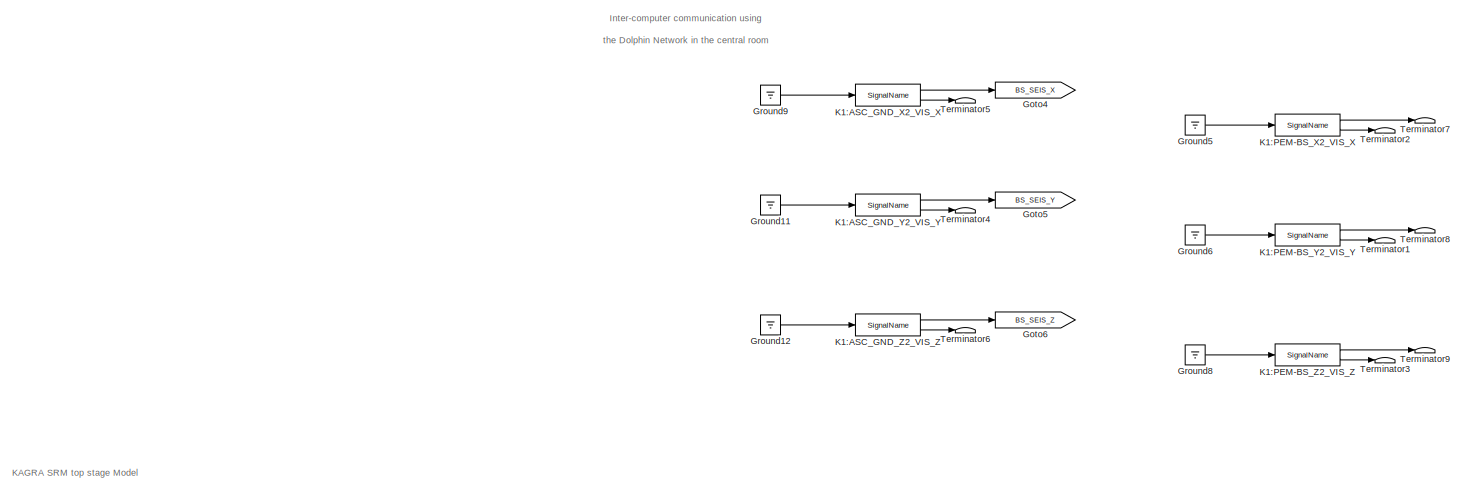
[diagram: root canvas - part 1/4, top center region]
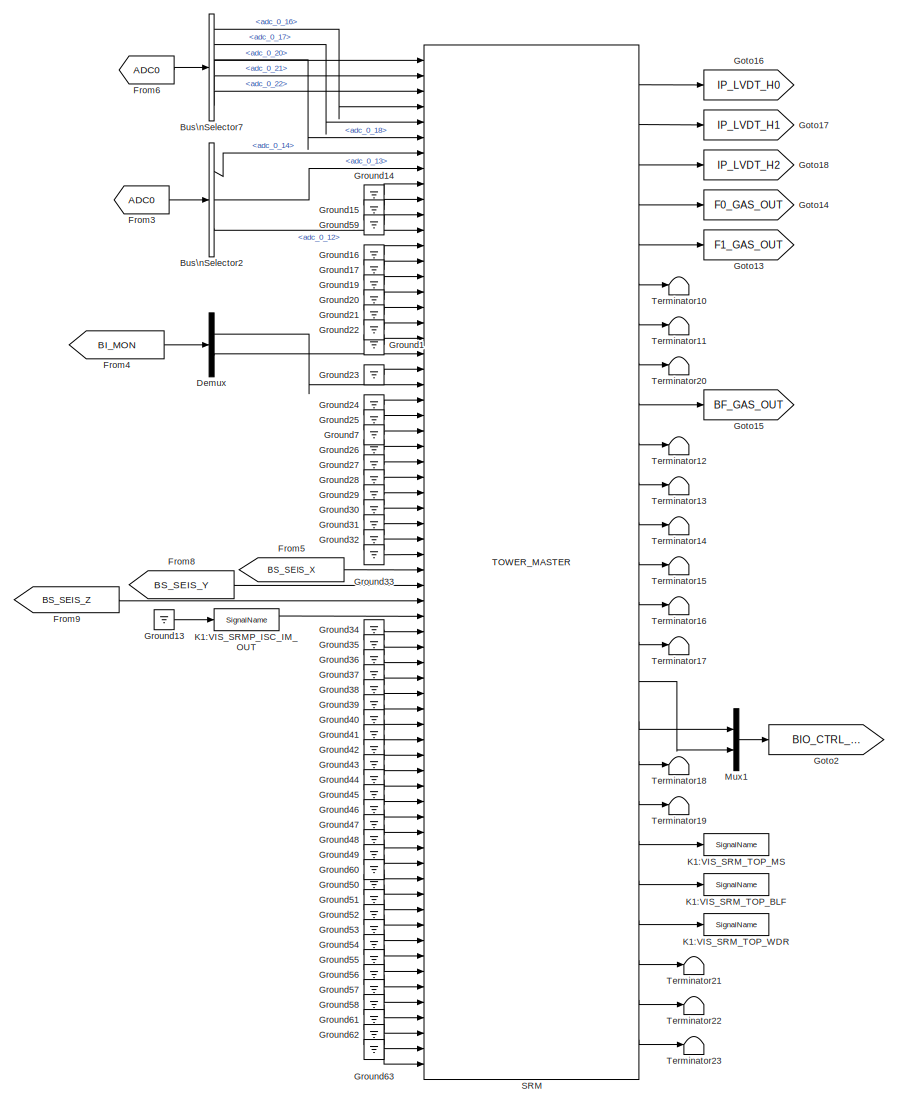
[diagram: root canvas - part 2/4, central region]
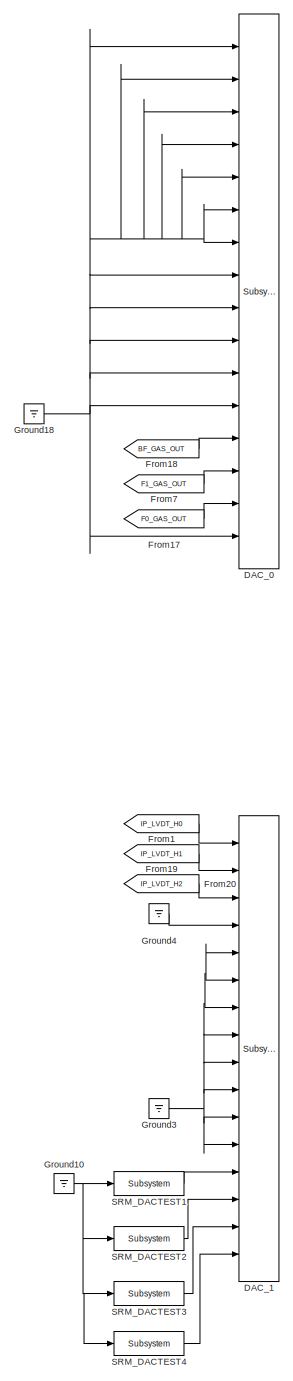
[diagram: root canvas - part 3/4, middle right region]
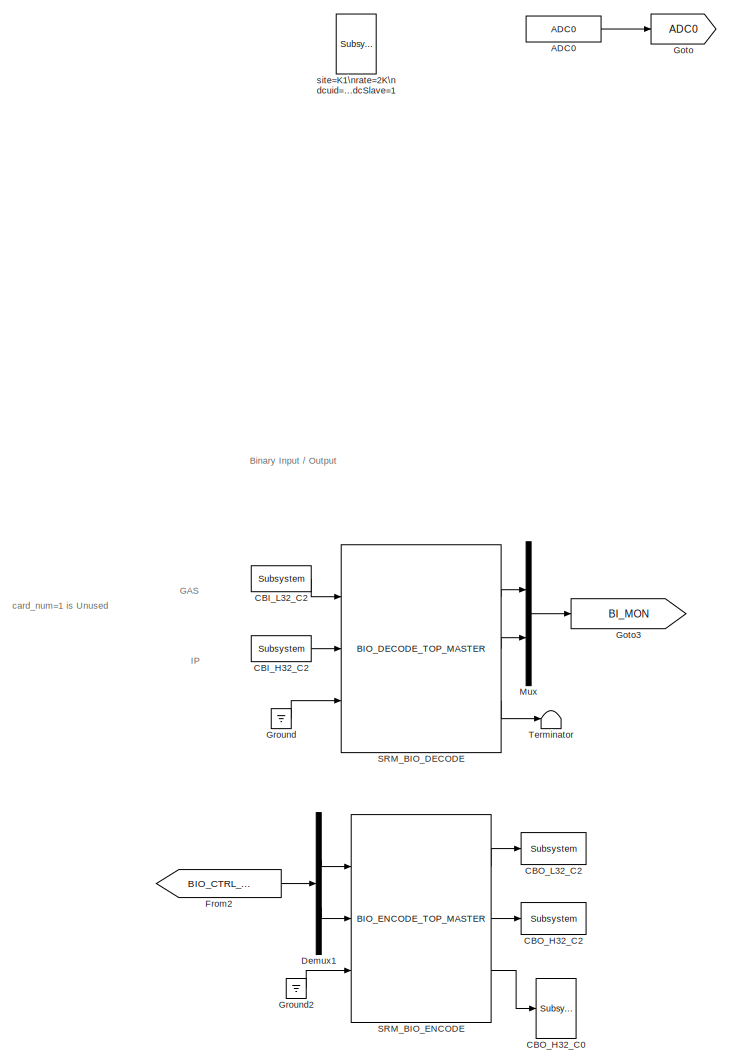
[diagram: root canvas - part 4/4, middle left region]
MODEL k1vissrmt
KIND model
BLOCK [Reference] ADC0  REF=cdsAdcx0/ADC0
  AttributesFormatString = %<Description>\\n%<Tag>
  Description = type-GSC_16AI64SSA\ncard_num=0
  Ports = [0, 1]
  SID = 352
  SourceBlock = cdsAdcx0/ADC0
  SourceType = SubSystem
  Tag = cdsAdc
BLOCK [BusSelector] Bus\nSelector2
  AttributesFormatString = %<Description>
  Description = ADC Selector
  OutputSignals = adc_0_14,adc_0_13,adc_0_12
  Ports = [1, 3]
  SID = 606
BLOCK [BusSelector] Bus\nSelector7
  AttributesFormatString = %<Description>
  Description = ADC Selector
  OutputSignals = adc_0_16,adc_0_17,adc_0_18,adc_0_20,adc_0_21,adc_0_22
  Ports = [1, 6]
  SID = 611
BLOCK [Reference] CBI_H32_C2  REF=cdsCDI64/Subsystem
  AttributesFormatString = %<Tag>\\n%<Description>
  Description = card_num=5
  Ports = [0, 1]
  SID = 753
  SourceBlock = cdsCDI64/Subsystem
  SourceType = SubSystem
  Tag = cdsCDI64
BLOCK [Reference] CBI_L32_C2  REF=cdsCDI64/Subsystem
  AttributesFormatString = %<Tag>\\n%<Description>
  Description = card_num=4
  Ports = [0, 1]
  SID = 754
  SourceBlock = cdsCDI64/Subsystem
  SourceType = SubSystem
  Tag = cdsCDI64
BLOCK [Reference] CBO_H32_C0  REF=cdsCDO64/Subsystem
  AttributesFormatString = %<Tag>\\n%<Description>
  Description = card_num=1
  Ports = [1]
  SID = 755
  SourceBlock = cdsCDO64/Subsystem
  SourceType = SubSystem
  Tag = cdsCDO64
BLOCK [Reference] CBO_H32_C2  REF=cdsCDO64/Subsystem
  AttributesFormatString = %<Tag>\\n%<Description>
  Description = card_num=5
  Ports = [1]
  SID = 756
  SourceBlock = cdsCDO64/Subsystem
  SourceType = SubSystem
  Tag = cdsCDO64
BLOCK [Reference] CBO_L32_C2  REF=cdsCDO64/Subsystem
  AttributesFormatString = %<Tag>\\n%<Description>
  Description = card_num=4
  Ports = [1]
  SID = 757
  SourceBlock = cdsCDO64/Subsystem
  SourceType = SubSystem
  Tag = cdsCDO64
BLOCK [Reference] DAC_0  REF=dac/Subsystem  (lib defined in slx_40ef132df75b, slx_b7657ccccc5b, +4 more)
  AttributesFormatString = %<Description>
  Description = type=GSC_16AO16,\ncard_num=0
  Ports = [16]
  SID = 622
  SourceBlock = dac/Subsystem
  SourceType = SubSystem
BLOCK [Reference] DAC_1  REF=dac/Subsystem  (lib defined in slx_40ef132df75b, slx_b7657ccccc5b, +4 more)
  AttributesFormatString = %<Description>
  Description = type=GSC_16AO16,\ncard_num=1
  Ports = [16]
  SID = 623
  SourceBlock = dac/Subsystem
  SourceType = SubSystem
BLOCK [Demux] Demux
  DisplayOption = bar
  Outputs = 2
  Ports = [1, 2]
  SID = 624
BLOCK [Demux] Demux1
  DisplayOption = bar
  Outputs = 2
  Ports = [1, 2]
  SID = 758
BLOCK [From] From1
  GotoTag = IP_LVDT_H0
  SID = 626
BLOCK [From] From17
  GotoTag = F0_GAS_OUT
  SID = 634
BLOCK [From] From18
  GotoTag = BF_GAS_OUT
  SID = 635
BLOCK [From] From19
  GotoTag = IP_LVDT_H1
  SID = 636
BLOCK [From] From2
  GotoTag = BIO_CTRL_OUT
  SID = 759
BLOCK [From] From20
  GotoTag = IP_LVDT_H2
  SID = 638
BLOCK [From] From3
  GotoTag = ADC0
  SID = 648
BLOCK [From] From4
  GotoTag = BI_MON
  SID = 649
BLOCK [From] From5
  GotoTag = BS_SEIS_X
  SID = 834
BLOCK [From] From6
  GotoTag = ADC0
  SID = 651
BLOCK [From] From7
  GotoTag = F1_GAS_OUT
  SID = 652
BLOCK [From] From8
  GotoTag = BS_SEIS_Y
  SID = 835
BLOCK [From] From9
  GotoTag = BS_SEIS_Z
  SID = 836
BLOCK [Goto] Goto
  GotoTag = ADC0
  SID = 655
BLOCK [Goto] Goto13
  GotoTag = F1_GAS_OUT
  SID = 660
BLOCK [Goto] Goto14
  GotoTag = F0_GAS_OUT
  SID = 661
BLOCK [Goto] Goto15
  GotoTag = BF_GAS_OUT
  SID = 662
BLOCK [Goto] Goto16
  GotoTag = IP_LVDT_H0
  SID = 663
BLOCK [Goto] Goto17
  GotoTag = IP_LVDT_H1
  SID = 664
BLOCK [Goto] Goto18
  GotoTag = IP_LVDT_H2
  SID = 665
BLOCK [Goto] Goto2
  GotoTag = BIO_CTRL_OUT
  SID = 667
BLOCK [Goto] Goto3
  GotoTag = BI_MON
  SID = 760
BLOCK [Goto] Goto4
  GotoTag = BS_SEIS_X
  SID = 837
BLOCK [Goto] Goto5
  GotoTag = BS_SEIS_Y
  SID = 838
BLOCK [Goto] Goto6
  GotoTag = BS_SEIS_Z
  SID = 839
BLOCK [Ground] Ground
  SID = 761
BLOCK [Ground] Ground1
  SID = 676
BLOCK [Ground] Ground10
  SID = 677
BLOCK [Ground] Ground11
  SID = 850
BLOCK [Ground] Ground12
  SID = 851
BLOCK [Ground] Ground13
  SID = 855
BLOCK [Ground] Ground14
  SID = 860
BLOCK [Ground] Ground15
  SID = 861
BLOCK [Ground] Ground16
  SID = 862
BLOCK [Ground] Ground17
  SID = 863
BLOCK [Ground] Ground18
  SID = 678
BLOCK [Ground] Ground19
  SID = 864
BLOCK [Ground] Ground2
  SID = 762
BLOCK [Ground] Ground20
  SID = 865
BLOCK [Ground] Ground21
  SID = 866
BLOCK [Ground] Ground22
  SID = 867
BLOCK [Ground] Ground23
  SID = 868
BLOCK [Ground] Ground24
  SID = 869
BLOCK [Ground] Ground25
  SID = 870
BLOCK [Ground] Ground26
  SID = 871
BLOCK [Ground] Ground27
  SID = 872
BLOCK [Ground] Ground28
  SID = 873
BLOCK [Ground] Ground29
  SID = 874
BLOCK [Ground] Ground3
  SID = 680
BLOCK [Ground] Ground30
  SID = 875
BLOCK [Ground] Ground31
  SID = 876
BLOCK [Ground] Ground32
  SID = 877
BLOCK [Ground] Ground33
  SID = 878
BLOCK [Ground] Ground34
  SID = 879
BLOCK [Ground] Ground35
  SID = 880
BLOCK [Ground] Ground36
  SID = 881
BLOCK [Ground] Ground37
  SID = 882
BLOCK [Ground] Ground38
  SID = 883
BLOCK [Ground] Ground39
  SID = 884
BLOCK [Ground] Ground4
  SID = 808
BLOCK [Ground] Ground40
  SID = 885
BLOCK [Ground] Ground41
  SID = 886
BLOCK [Ground] Ground42
  SID = 887
BLOCK [Ground] Ground43
  SID = 888
BLOCK [Ground] Ground44
  SID = 889
BLOCK [Ground] Ground45
  SID = 890
BLOCK [Ground] Ground46
  SID = 891
BLOCK [Ground] Ground47
  SID = 892
BLOCK [Ground] Ground48
  SID = 893
BLOCK [Ground] Ground49
  SID = 894
BLOCK [Ground] Ground5
  SID = 824
BLOCK [Ground] Ground50
  SID = 895
BLOCK [Ground] Ground51
  SID = 896
BLOCK [Ground] Ground52
  SID = 897
BLOCK [Ground] Ground53
  SID = 898
BLOCK [Ground] Ground54
  SID = 899
BLOCK [Ground] Ground55
  SID = 900
BLOCK [Ground] Ground56
  SID = 901
BLOCK [Ground] Ground57
  SID = 902
BLOCK [Ground] Ground58
  SID = 903
BLOCK [Ground] Ground59
  SID = 914
BLOCK [Ground] Ground6
  SID = 825
BLOCK [Ground] Ground60
  SID = 915
BLOCK [Ground] Ground61
  SID = 920
BLOCK [Ground] Ground62
  SID = 921
BLOCK [Ground] Ground63
  SID = 922
BLOCK [Ground] Ground7
  SID = 684
BLOCK [Ground] Ground8
  SID = 826
BLOCK [Ground] Ground9
  SID = 849
BLOCK [Reference] K1:ASC_GND_X2_VIS_X  REF=cdsIPCx/SignalName
  AttributesFormatString = %<Tag>
  Description = Inter-Process Communication via PCI Express network.
  Ports = [1, 2]
  SID = 843
  SourceBlock = cdsIPCx/SignalName
  SourceType = SubSystem
  Tag = cdsIPCx_PCIE
BLOCK [Reference] K1:ASC_GND_Y2_VIS_Y  REF=cdsIPCx/SignalName
  AttributesFormatString = %<Tag>
  Description = Inter-Process Communication via PCI Express network.
  Ports = [1, 2]
  SID = 844
  SourceBlock = cdsIPCx/SignalName
  SourceType = SubSystem
  Tag = cdsIPCx_PCIE
BLOCK [Reference] K1:ASC_GND_Z2_VIS_Z  REF=cdsIPCx/SignalName
  AttributesFormatString = %<Tag>
  Description = Inter-Process Communication via PCI Express network.
  Ports = [1, 2]
  SID = 845
  SourceBlock = cdsIPCx/SignalName
  SourceType = SubSystem
  Tag = cdsIPCx_PCIE
BLOCK [Reference] K1:PEM-BS_X2_VIS_X  REF=cdsIPCx/SignalName
  AttributesFormatString = %<Tag>
  Description = Inter-Process Communication via PCI Express network.
  Ports = [1, 2]
  SID = 827
  SourceBlock = cdsIPCx/SignalName
  SourceType = SubSystem
  Tag = cdsIPCx_PCIE
BLOCK [Reference] K1:PEM-BS_Y2_VIS_Y  REF=cdsIPCx/SignalName
  AttributesFormatString = %<Tag>
  Description = Inter-Process Communication via PCI Express network.
  Ports = [1, 2]
  SID = 828
  SourceBlock = cdsIPCx/SignalName
  SourceType = SubSystem
  Tag = cdsIPCx_PCIE
BLOCK [Reference] K1:PEM-BS_Z2_VIS_Z  REF=cdsIPCx/SignalName
  AttributesFormatString = %<Tag>
  Description = Inter-Process Communication via PCI Express network.
  Ports = [1, 2]
  SID = 829
  SourceBlock = cdsIPCx/SignalName
  SourceType = SubSystem
  Tag = cdsIPCx_PCIE
BLOCK [Reference] K1:VIS_SRMP_ISC_IM_OUT  REF=cdsIPCx/SignalName
  AttributesFormatString = %<Tag>
  Description = Inter-Process Communication via Shared memory.
  Ports = [1, 2]
  SID = 856
  SourceBlock = cdsIPCx/SignalName
  SourceType = SubSystem
  Tag = cdsIPCx_SHMEM
BLOCK [Reference] K1:VIS_SRM_TOP_BLF  REF=cdsIPCx/SignalName
  AttributesFormatString = %<Tag>
  Description = Inter-Process Communication via Shared memory.
  Ports = [1, 2]
  SID = 771
  SourceBlock = cdsIPCx/SignalName
  SourceType = SubSystem
  Tag = cdsIPCx_SHMEM
BLOCK [Reference] K1:VIS_SRM_TOP_MS  REF=cdsIPCx/SignalName
  AttributesFormatString = %<Tag>
  Description = Inter-Process Communication via Shared memory.
  Ports = [1, 2]
  SID = 751
  SourceBlock = cdsIPCx/SignalName
  SourceType = SubSystem
  Tag = cdsIPCx_SHMEM
BLOCK [Reference] K1:VIS_SRM_TOP_WDR  REF=cdsIPCx/SignalName
  AttributesFormatString = %<Tag>
  Description = Inter-Process Communication via Shared memory.
  Ports = [1, 2]
  SID = 752
  SourceBlock = cdsIPCx/SignalName
  SourceType = SubSystem
  Tag = cdsIPCx_SHMEM
BLOCK [Mux] Mux
  DisplayOption = bar
  Inputs = 2
  Ports = [2, 1]
  SID = 763
BLOCK [Mux] Mux1
  DisplayOption = bar
  Inputs = 2
  Ports = [2, 1]
  SID = 689
BLOCK [Reference] SRM  REF=TOWER_MASTER/TOWER_MASTER
  Ports = [66, 25]
  SID = 857
  SourceBlock = TOWER_MASTER/TOWER_MASTER
  SourceType = SubSystem
BLOCK [Reference] SRM_BIO_DECODE  REF=TYPEB_MASTER/BIO_DECODE_TOP_MASTER
  Ports = [3, 3]
  SID = 764
  SourceBlock = TYPEB_MASTER/BIO_DECODE_TOP_MASTER
  SourceType = SubSystem
BLOCK [Reference] SRM_BIO_ENCODE  REF=TYPEB_MASTER/BIO_ENCODE_TOP_MASTER
  Ports = [3, 3]
  SID = 765
  SourceBlock = TYPEB_MASTER/BIO_ENCODE_TOP_MASTER
  SourceType = SubSystem
BLOCK [Reference] SRM_DACTEST1  REF=cdsFilt/Subsystem
  AttributesFormatString = %<Tag>
  Description = Purpose:                                                                                                                                                                                                                                  \nStandard CDS IIR filter module.                                                                                                                                     ...<+1302ch>  <repeated x4 — deduplicated; at blocks: SRM_DACTEST1, SRM_DACTEST2, SRM_DACTEST3, SRM_DACTEST4>
  Ports = [1, 1]
  SID = 601
  SourceBlock = cdsFilt/Subsystem
  SourceType = SubSystem
  Tag = cdsFilt
BLOCK [Reference] SRM_DACTEST2  REF=cdsFilt/Subsystem
  AttributesFormatString = %<Tag>
  Ports = [1, 1]
  SID = 602
  SourceBlock = cdsFilt/Subsystem
  SourceType = SubSystem
  Tag = cdsFilt
BLOCK [Reference] SRM_DACTEST3  REF=cdsFilt/Subsystem
  AttributesFormatString = %<Tag>
  Ports = [1, 1]
  SID = 603
  SourceBlock = cdsFilt/Subsystem
  SourceType = SubSystem
  Tag = cdsFilt
BLOCK [Reference] SRM_DACTEST4  REF=cdsFilt/Subsystem
  AttributesFormatString = %<Tag>
  Ports = [1, 1]
  SID = 604
  SourceBlock = cdsFilt/Subsystem
  SourceType = SubSystem
  Tag = cdsFilt
BLOCK [Terminator] Terminator
  SID = 766
BLOCK [Terminator] Terminator1
  SID = 830
BLOCK [Terminator] Terminator10
  SID = 904
BLOCK [Terminator] Terminator11
  SID = 905
BLOCK [Terminator] Terminator12
  SID = 906
BLOCK [Terminator] Terminator13
  SID = 907
BLOCK [Terminator] Terminator14
  SID = 908
BLOCK [Terminator] Terminator15
  SID = 909
BLOCK [Terminator] Terminator16
  SID = 910
BLOCK [Terminator] Terminator17
  SID = 911
BLOCK [Terminator] Terminator18
  SID = 912
BLOCK [Terminator] Terminator19
  SID = 913
BLOCK [Terminator] Terminator2
  SID = 831
BLOCK [Terminator] Terminator20
  SID = 916
BLOCK [Terminator] Terminator21
  SID = 923
BLOCK [Terminator] Terminator22
  SID = 924
BLOCK [Terminator] Terminator23
  SID = 925
BLOCK [Terminator] Terminator3
  SID = 832
BLOCK [Terminator] Terminator4
  SID = 846
BLOCK [Terminator] Terminator5
  SID = 847
BLOCK [Terminator] Terminator6
  SID = 848
BLOCK [Terminator] Terminator7
  SID = 852
BLOCK [Terminator] Terminator8
  SID = 853
BLOCK [Terminator] Terminator9
  SID = 854
BLOCK [Reference] site=K1\nrate=2K\ndcuid=75\nhost=k1srm\nspecific_cpu=2\nadcSlave=1  REF=cdsParameters/Subsystem
  AttributesFormatString = %<Tag>
  Description = Purpose:                                                                                                                                                                                                                                \nProvide system parameters to the FE code generator to properly configure the generated EPICS names, rep rate of the FE controller, and the Data Acquisition node ID fo...<+2934ch>
  Ports = []
  SID = 690
  SourceBlock = cdsParameters/Subsystem
  SourceType = SubSystem
  Tag = cdsParameters
ANNOTATION (root): \n \n card_num=1 is Unused
ANNOTATION (root): \n \n GAS
ANNOTATION (root): \n \n IP
ANNOTATION (root): \n \n KAGRA SRM top stage Model
ANNOTATION (root): \n \n Inter-computer communication using \n the Dolphin Network in the central room \n
ANNOTATION (root): Binary Input / Output
LINE ADC0:1 -> Goto:1
LINE Bus\nSelector2:1 -> SRM:7
LINE Bus\nSelector2:2 -> SRM:8
LINE Bus\nSelector2:3 -> SRM:12
LINE Bus\nSelector7:1 -> SRM:4
LINE Bus\nSelector7:2 -> SRM:5
LINE Bus\nSelector7:3 -> SRM:6
LINE Bus\nSelector7:4 -> SRM:1
LINE Bus\nSelector7:5 -> SRM:2
LINE Bus\nSelector7:6 -> SRM:3
LINE CBI_H32_C2:1 -> SRM_BIO_DECODE:2
LINE CBI_L32_C2:1 -> SRM_BIO_DECODE:1
LINE Demux1:1 -> SRM_BIO_ENCODE:1
LINE Demux1:2 -> SRM_BIO_ENCODE:2
LINE Demux:1 -> SRM:22
LINE Demux:2 -> SRM:20
LINE From17:1 -> DAC_0:15
LINE From18:1 -> DAC_0:13
LINE From19:1 -> DAC_1:2
LINE From1:1 -> DAC_1:1
LINE From20:1 -> DAC_1:3
LINE From2:1 -> Demux1:1
LINE From3:1 -> Bus\nSelector2:1
LINE From4:1 -> Demux:1
LINE From5:1 -> SRM:34
LINE From6:1 -> Bus\nSelector7:1
LINE From7:1 -> DAC_0:14
LINE From8:1 -> SRM:35
LINE From9:1 -> SRM:36
NET Ground10:1 -> SRM_DACTEST1:1, SRM_DACTEST2:1, SRM_DACTEST3:1, SRM_DACTEST4:1
LINE Ground11:1 -> K1:ASC_GND_Y2_VIS_Y:1
LINE Ground12:1 -> K1:ASC_GND_Z2_VIS_Z:1
LINE Ground13:1 -> K1:VIS_SRMP_ISC_IM_OUT:1
LINE Ground14:1 -> SRM:9
LINE Ground15:1 -> SRM:10
LINE Ground16:1 -> SRM:13
LINE Ground17:1 -> SRM:14
NET Ground18:1 -> DAC_0:1, DAC_0:10, DAC_0:11, DAC_0:12, DAC_0:16, DAC_0:2, DAC_0:3, DAC_0:4, DAC_0:5, DAC_0:6, DAC_0:7, DAC_0:8, DAC_0:9
LINE Ground19:1 -> SRM:15
LINE Ground1:1 -> SRM:19
LINE Ground20:1 -> SRM:16
LINE Ground21:1 -> SRM:17
LINE Ground22:1 -> SRM:18
LINE Ground23:1 -> SRM:21
LINE Ground24:1 -> SRM:23
LINE Ground25:1 -> SRM:24
LINE Ground26:1 -> SRM:26
LINE Ground27:1 -> SRM:27
LINE Ground28:1 -> SRM:28
LINE Ground29:1 -> SRM:29
LINE Ground2:1 -> SRM_BIO_ENCODE:3
LINE Ground30:1 -> SRM:30
LINE Ground31:1 -> SRM:31
LINE Ground32:1 -> SRM:32
LINE Ground33:1 -> SRM:33
LINE Ground34:1 -> SRM:38
LINE Ground35:1 -> SRM:39
LINE Ground36:1 -> SRM:40
LINE Ground37:1 -> SRM:41
LINE Ground38:1 -> SRM:42
LINE Ground39:1 -> SRM:43
NET Ground3:1 -> DAC_1:10, DAC_1:11, DAC_1:12, DAC_1:5, DAC_1:6, DAC_1:7, DAC_1:8, DAC_1:9
LINE Ground40:1 -> SRM:44
LINE Ground41:1 -> SRM:45
LINE Ground42:1 -> SRM:46
LINE Ground43:1 -> SRM:47
LINE Ground44:1 -> SRM:48
LINE Ground45:1 -> SRM:49
LINE Ground46:1 -> SRM:50
LINE Ground47:1 -> SRM:51
LINE Ground48:1 -> SRM:52
LINE Ground49:1 -> SRM:53
LINE Ground4:1 -> DAC_1:4
LINE Ground50:1 -> SRM:55
LINE Ground51:1 -> SRM:56
LINE Ground52:1 -> SRM:57
LINE Ground53:1 -> SRM:58
LINE Ground54:1 -> SRM:59
LINE Ground55:1 -> SRM:60
LINE Ground56:1 -> SRM:61
LINE Ground57:1 -> SRM:62
LINE Ground58:1 -> SRM:63
LINE Ground59:1 -> SRM:11
LINE Ground5:1 -> K1:PEM-BS_X2_VIS_X:1
LINE Ground60:1 -> SRM:54
LINE Ground61:1 -> SRM:64
LINE Ground62:1 -> SRM:65
LINE Ground63:1 -> SRM:66
LINE Ground6:1 -> K1:PEM-BS_Y2_VIS_Y:1
LINE Ground7:1 -> SRM:25
LINE Ground8:1 -> K1:PEM-BS_Z2_VIS_Z:1
LINE Ground9:1 -> K1:ASC_GND_X2_VIS_X:1
LINE Ground:1 -> SRM_BIO_DECODE:3
LINE K1:ASC_GND_X2_VIS_X:1 -> Goto4:1
LINE K1:ASC_GND_X2_VIS_X:2 -> Terminator5:1
LINE K1:ASC_GND_Y2_VIS_Y:1 -> Goto5:1
LINE K1:ASC_GND_Y2_VIS_Y:2 -> Terminator4:1
LINE K1:ASC_GND_Z2_VIS_Z:1 -> Goto6:1
LINE K1:ASC_GND_Z2_VIS_Z:2 -> Terminator6:1
LINE K1:PEM-BS_X2_VIS_X:1 -> Terminator7:1
LINE K1:PEM-BS_X2_VIS_X:2 -> Terminator2:1
LINE K1:PEM-BS_Y2_VIS_Y:1 -> Terminator8:1
LINE K1:PEM-BS_Y2_VIS_Y:2 -> Terminator1:1
LINE K1:PEM-BS_Z2_VIS_Z:1 -> Terminator9:1
LINE K1:PEM-BS_Z2_VIS_Z:2 -> Terminator3:1
LINE K1:VIS_SRMP_ISC_IM_OUT:1 -> SRM:37
LINE Mux1:1 -> Goto2:1
LINE Mux:1 -> Goto3:1
LINE SRM:1 -> Goto16:1
LINE SRM:10 -> Terminator12:1
LINE SRM:11 -> Terminator13:1
LINE SRM:12 -> Terminator14:1
LINE SRM:13 -> Terminator15:1
LINE SRM:14 -> Terminator16:1
LINE SRM:15 -> Terminator17:1
LINE SRM:16 -> Mux1:2
LINE SRM:17 -> Mux1:1
LINE SRM:18 -> Terminator18:1
LINE SRM:19 -> Terminator19:1
LINE SRM:2 -> Goto17:1
LINE SRM:20 -> K1:VIS_SRM_TOP_MS:1
LINE SRM:21 -> K1:VIS_SRM_TOP_BLF:1
LINE SRM:22 -> K1:VIS_SRM_TOP_WDR:1
LINE SRM:23 -> Terminator21:1
LINE SRM:24 -> Terminator22:1
LINE SRM:25 -> Terminator23:1
LINE SRM:3 -> Goto18:1
LINE SRM:4 -> Goto14:1
LINE SRM:5 -> Goto13:1
LINE SRM:6 -> Terminator10:1
LINE SRM:7 -> Terminator11:1
LINE SRM:8 -> Terminator20:1
LINE SRM:9 -> Goto15:1
LINE SRM_BIO_DECODE:1 -> Mux:1
LINE SRM_BIO_DECODE:2 -> Mux:2
LINE SRM_BIO_DECODE:3 -> Terminator:1
LINE SRM_BIO_ENCODE:1 -> CBO_L32_C2:1
LINE SRM_BIO_ENCODE:2 -> CBO_H32_C2:1
LINE SRM_BIO_ENCODE:3 -> CBO_H32_C0:1
LINE SRM_DACTEST1:1 -> DAC_1:13
LINE SRM_DACTEST2:1 -> DAC_1:14
LINE SRM_DACTEST3:1 -> DAC_1:15
LINE SRM_DACTEST4:1 -> DAC_1:16
note: NET lines group one-source signal fan-out (src -> all destinations, sorted); 1:1 wires keep LINE
